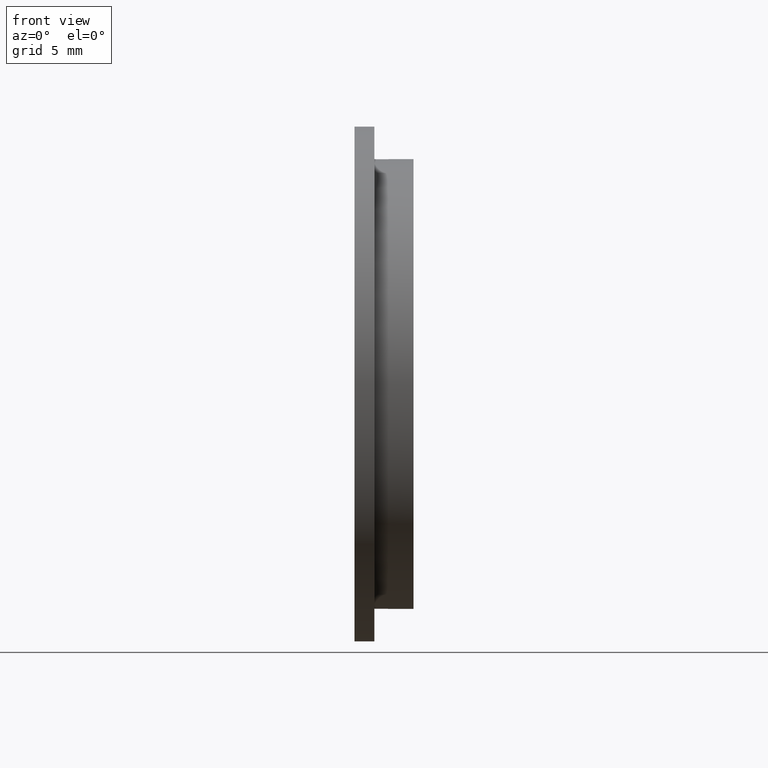
[diagram: clean part render]
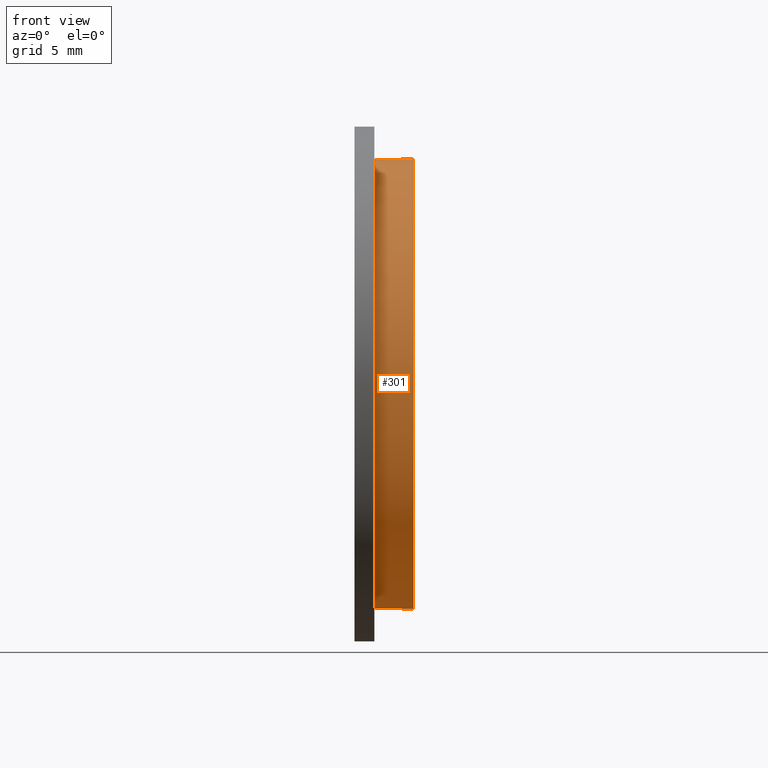
[diagram: same view with one face highlighted and labeled with its STEP entity id]
A machine part, front view. The second image highlights one B-rep face of the part: STEP entity #301.
In plain terms, the highlighted cylindrical surface (bore or boss wall) has radius 15.25 mm, axis along (1, 0, 0).
Its self-contained STEP definition (entity closure, byte-faithful):
#115=CARTESIAN_POINT('',(-4.222580550947495,19.721071658520824,-2.349999999999998));
#116=VERTEX_POINT('',#115);
#124=CARTESIAN_POINT('',(-2.322580550947496,19.721071658520824,-2.349999999999998));
#125=VERTEX_POINT('',#124);
#132=CARTESIAN_POINT('',(-4.222580550947495,19.721071658520824,-2.349999999999998));
#133=DIRECTION('',(1.0,0.0,0.0));
#134=VECTOR('',#133,1.900000000000000);
#135=LINE('',#132,#134);
#136=EDGE_CURVE('',#116,#125,#135,.T.);
#146=CARTESIAN_POINT('',(-4.222580550947495,19.721071658520824,2.350000000000002));
#147=VERTEX_POINT('',#146);
#154=CARTESIAN_POINT('',(-2.322580550947496,19.721071658520824,2.350000000000002));
#155=VERTEX_POINT('',#154);
#156=CARTESIAN_POINT('',(-2.322580550947496,19.721071658520824,2.350000000000002));
#157=DIRECTION('',(-1.0,0.0,0.0));
#158=VECTOR('',#157,1.900000000000000);
#159=LINE('',#156,#158);
#160=EDGE_CURVE('',#155,#147,#159,.T.);
#179=CARTESIAN_POINT('',(-4.222580550947495,4.653225097050933,0.0));
#180=DIRECTION('',(-1.0,0.0,0.0));
#181=DIRECTION('',(0.0,1.0,0.0));
#182=AXIS2_PLACEMENT_3D('',#179,#180,#181);
#183=CIRCLE('',#182,15.250000000000002);
#184=EDGE_CURVE('',#147,#116,#183,.T.);
#198=CARTESIAN_POINT('',(-2.322580550947497,4.653225097050933,0.0));
#199=DIRECTION('',(1.0,0.0,0.0));
#200=DIRECTION('',(0.0,1.0,0.0));
#201=AXIS2_PLACEMENT_3D('',#198,#199,#200);
#202=CIRCLE('',#201,15.250000000000002);
#203=EDGE_CURVE('',#155,#125,#202,.T.);
#275=CARTESIAN_POINT('',(-4.972580550947499,19.903225097050935,0.0));
#276=VERTEX_POINT('',#275);
#277=CARTESIAN_POINT('',(-4.972580550947499,4.653225097050933,0.0));
#278=DIRECTION('',(1.0,0.0,0.0));
#279=DIRECTION('',(0.0,1.0,0.0));
#280=AXIS2_PLACEMENT_3D('',#277,#278,#279);
#281=CIRCLE('',#280,15.250000000000002);
#282=EDGE_CURVE('',#276,#276,#281,.T.);
#287=CARTESIAN_POINT('',(-3.647580550947498,4.653225097050933,0.0));
#288=DIRECTION('',(1.0,0.0,0.0));
#289=DIRECTION('',(0.0,1.0,0.0));
#290=AXIS2_PLACEMENT_3D('',#287,#288,#289);
#291=CYLINDRICAL_SURFACE('',#290,15.250000000000002);
#292=ORIENTED_EDGE('',*,*,#136,.T.);
#293=ORIENTED_EDGE('',*,*,#203,.F.);
#294=ORIENTED_EDGE('',*,*,#160,.T.);
#295=ORIENTED_EDGE('',*,*,#184,.T.);
#296=EDGE_LOOP('',(#292,#293,#294,#295));
#297=FACE_OUTER_BOUND('',#296,.T.);
#298=ORIENTED_EDGE('',*,*,#282,.T.);
#299=EDGE_LOOP('',(#298));
#300=FACE_BOUND('',#299,.T.);
#301=ADVANCED_FACE('',(#297,#300),#291,.T.);